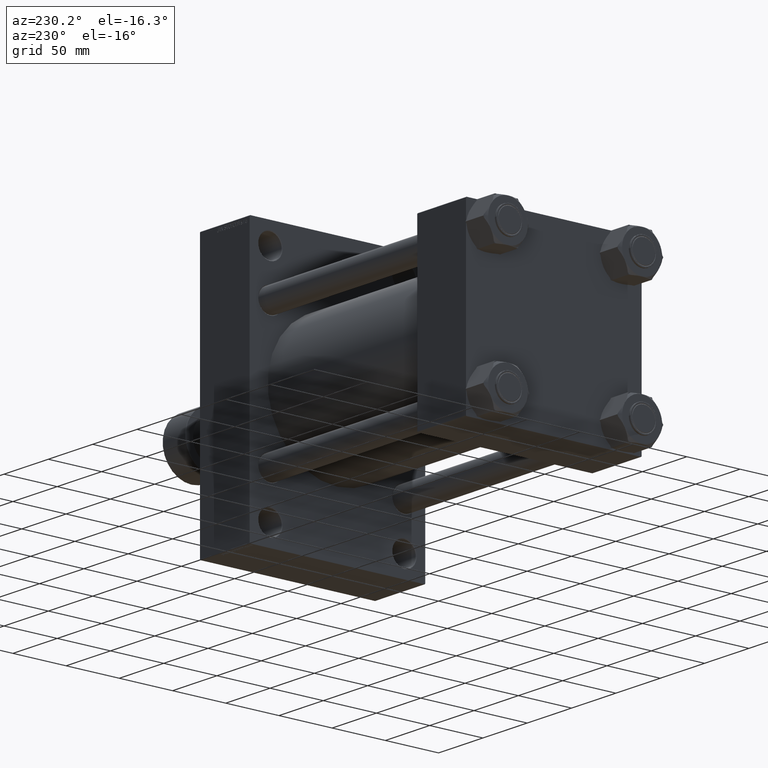
[diagram: clean part render]
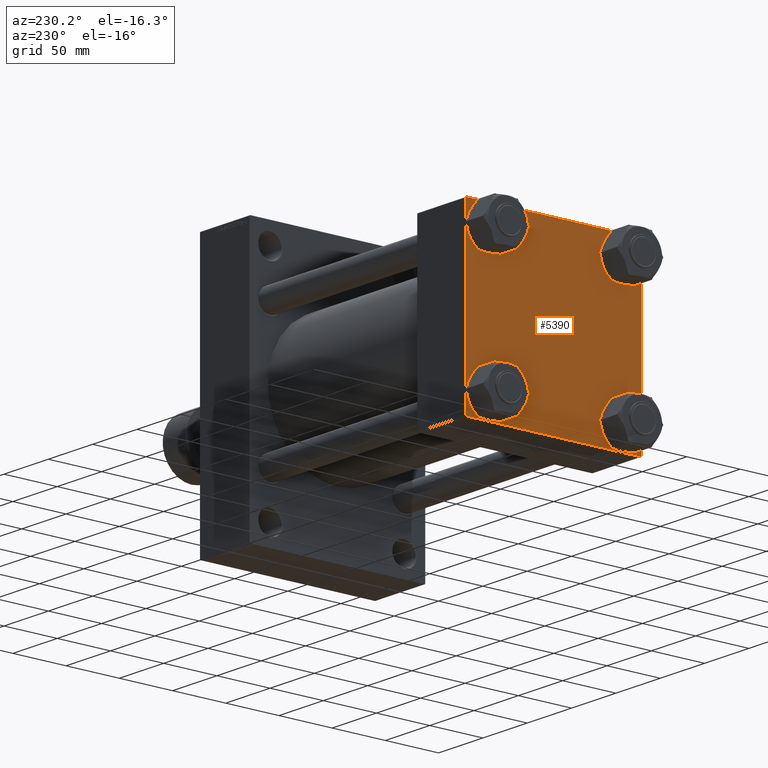
[diagram: same view with one face highlighted and labeled with its STEP entity id]
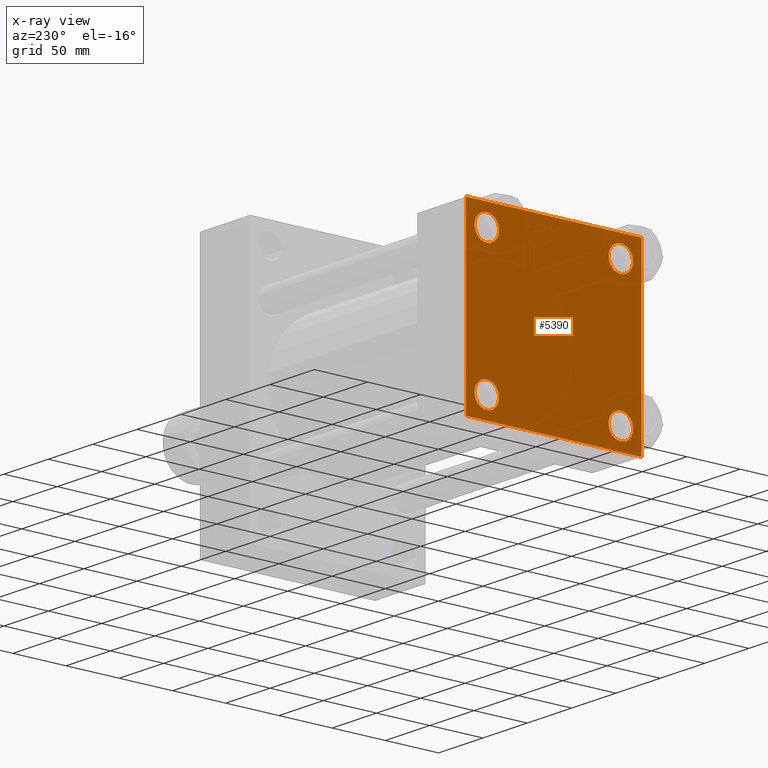
[diagram: x-ray of the same camera — body ghosted, the highlighted face saturated]
A machine part, auxiliary view. The second image highlights one B-rep face of the part: STEP entity #5390.
The next image is the same camera in x-ray: the body ghosted, the highlighted face saturated — about 0% of this face is hidden behind the body in this view.
In plain terms, the highlighted planar face has unit normal (-1, 0, 0).
Its self-contained STEP definition (entity closure, byte-faithful):
#188 = CIRCLE ( 'NONE', #9546, 11.50000000000001066 ) ;
#314 = CARTESIAN_POINT ( 'NONE',  ( 0.000000000000000000, -62.94999999999998153, -62.95000000000001705 ) ) ;
#508 = LINE ( 'NONE', #38087, #28244 ) ;
#569 = DIRECTION ( 'NONE',  ( -0.000000000000000000, 0.7071067811865474617, 0.7071067811865474617 ) ) ;
#718 = FACE_OUTER_BOUND ( 'NONE', #3890, .T. ) ;
#925 = CARTESIAN_POINT ( 'NONE',  ( 0.000000000000000000, 82.00000000000005684, 82.50000000000002842 ) ) ;
#1070 = CARTESIAN_POINT ( 'NONE',  ( 0.000000000000000000, 82.00000000000005684, -82.49999999999997158 ) ) ;
#1481 = EDGE_LOOP ( 'NONE', ( #13738, #5569 ) ) ;
#2561 = LINE ( 'NONE', #36712, #10270 ) ;
#2655 = EDGE_CURVE ( 'NONE', #5943, #29613, #2561, .T. ) ;
#2935 = FACE_BOUND ( 'NONE', #23634, .T. ) ;
#3099 = DIRECTION ( 'NONE',  ( 1.000000000000000000, -0.000000000000000000, -0.000000000000000000 ) ) ;
#3250 = ORIENTED_EDGE ( 'NONE', *, *, #11235, .T. ) ;
#3350 = EDGE_CURVE ( 'NONE', #12153, #4577, #188, .T. ) ;
#3890 = EDGE_LOOP ( 'NONE', ( #15272, #4144, #30940, #3250, #12582, #9297, #38996, #28989 ) ) ;
#3900 = PLANE ( 'NONE',  #13368 ) ;
#3987 = LINE ( 'NONE', #41577, #25564 ) ;
#4063 = EDGE_CURVE ( 'NONE', #48143, #25340, #7997, .T. ) ;
#4133 = VECTOR ( 'NONE', #16854, 1000.000000000000000 ) ;
#4144 = ORIENTED_EDGE ( 'NONE', *, *, #21318, .T. ) ;
#4302 = CIRCLE ( 'NONE', #13637, 11.50000000000001066 ) ;
#4317 = DIRECTION ( 'NONE',  ( 1.000000000000000000, -0.000000000000000000, -0.000000000000000000 ) ) ;
#4577 = VERTEX_POINT ( 'NONE', #21355 ) ;
#5390 = ADVANCED_FACE ( 'NONE', ( #6595, #21480, #36376, #2935, #718 ), #3900, .T. ) ;
#5569 = ORIENTED_EDGE ( 'NONE', *, *, #30186, .T. ) ;
#5749 = EDGE_CURVE ( 'NONE', #27444, #29780, #508, .T. ) ;
#5803 = DIRECTION ( 'NONE',  ( 1.000000000000000000, -0.000000000000000000, -0.000000000000000000 ) ) ;
#5943 = VERTEX_POINT ( 'NONE', #10215 ) ;
#6147 = DIRECTION ( 'NONE',  ( 1.000000000000000000, -0.000000000000000000, -0.000000000000000000 ) ) ;
#6595 = FACE_BOUND ( 'NONE', #28666, .T. ) ;
#6652 = VERTEX_POINT ( 'NONE', #26803 ) ;
#7048 = CARTESIAN_POINT ( 'NONE',  ( 0.000000000000000000, -62.94999999999998153, -51.45000000000000995 ) ) ;
#7058 = CARTESIAN_POINT ( 'NONE',  ( 0.000000000000000000, 82.50000000000002842, 82.50000000000002842 ) ) ;
#7244 = CARTESIAN_POINT ( 'NONE',  ( 0.000000000000000000, 62.95000000000000284, -62.95000000000000284 ) ) ;
#7246 = CARTESIAN_POINT ( 'NONE',  ( 0.000000000000000000, -62.94999999999998153, 74.45000000000003126 ) ) ;
#7561 = CARTESIAN_POINT ( 'NONE',  ( 0.000000000000000000, 0.000000000000000000, 0.000000000000000000 ) ) ;
#7997 = CIRCLE ( 'NONE', #12553, 11.50000000000001066 ) ;
#8092 = EDGE_CURVE ( 'NONE', #8534, #24053, #25886, .T. ) ;
#8314 = CARTESIAN_POINT ( 'NONE',  ( 0.000000000000000000, 62.95000000000000284, 62.95000000000000284 ) ) ;
#8534 = VERTEX_POINT ( 'NONE', #7048 ) ;
#8970 = AXIS2_PLACEMENT_3D ( 'NONE', #30675, #4317, #41667 ) ;
#9297 = ORIENTED_EDGE ( 'NONE', *, *, #24912, .T. ) ;
#9546 = AXIS2_PLACEMENT_3D ( 'NONE', #7244, #3099, #25566 ) ;
#9873 = DIRECTION ( 'NONE',  ( 0.000000000000000000, 0.000000000000000000, 1.000000000000000000 ) ) ;
#10215 = CARTESIAN_POINT ( 'NONE',  ( 0.000000000000000000, 82.50000000000002842, 82.00000000000005684 ) ) ;
#10270 = VECTOR ( 'NONE', #25737, 1000.000000000000000 ) ;
#10291 = EDGE_CURVE ( 'NONE', #10375, #36342, #36356, .T. ) ;
#10375 = VERTEX_POINT ( 'NONE', #925 ) ;
#10395 = CARTESIAN_POINT ( 'NONE',  ( 0.000000000000000000, 82.50000000000002842, -82.00000000000000000 ) ) ;
#10564 = EDGE_CURVE ( 'NONE', #6652, #17267, #24424, .T. ) ;
#11235 = EDGE_CURVE ( 'NONE', #29780, #17267, #20024, .T. ) ;
#11241 = AXIS2_PLACEMENT_3D ( 'NONE', #24994, #25470, #22041 ) ;
#11368 = CARTESIAN_POINT ( 'NONE',  ( 0.000000000000000000, -82.50000000000000000, -81.99999999999998579 ) ) ;
#12153 = VERTEX_POINT ( 'NONE', #25155 ) ;
#12553 = AXIS2_PLACEMENT_3D ( 'NONE', #8314, #41527, #22726 ) ;
#12582 = ORIENTED_EDGE ( 'NONE', *, *, #10564, .F. ) ;
#12762 = DIRECTION ( 'NONE',  ( 0.000000000000000000, 0.7071067811865474617, -0.7071067811865474617 ) ) ;
#13368 = AXIS2_PLACEMENT_3D ( 'NONE', #7561, #23169, #30262 ) ;
#13439 = VERTEX_POINT ( 'NONE', #7246 ) ;
#13637 = AXIS2_PLACEMENT_3D ( 'NONE', #20693, #5803, #17258 ) ;
#13738 = ORIENTED_EDGE ( 'NONE', *, *, #8092, .T. ) ;
#14085 = VERTEX_POINT ( 'NONE', #22018 ) ;
#14969 = EDGE_CURVE ( 'NONE', #10375, #5943, #16431, .T. ) ;
#15202 = DIRECTION ( 'NONE',  ( 1.000000000000000000, -0.000000000000000000, -0.000000000000000000 ) ) ;
#15272 = ORIENTED_EDGE ( 'NONE', *, *, #2655, .T. ) ;
#16230 = DIRECTION ( 'NONE',  ( 1.000000000000000000, -0.000000000000000000, -0.000000000000000000 ) ) ;
#16431 = LINE ( 'NONE', #31333, #34542 ) ;
#16470 = CARTESIAN_POINT ( 'NONE',  ( 0.000000000000000000, 62.95000000000000284, -62.95000000000000284 ) ) ;
#16823 = VECTOR ( 'NONE', #18388, 1000.000000000000114 ) ;
#16854 = DIRECTION ( 'NONE',  ( 0.000000000000000000, -1.682156097916903588E-16, -1.000000000000000000 ) ) ;
#17134 = CARTESIAN_POINT ( 'NONE',  ( 0.000000000000000000, -62.94999999999998153, -62.95000000000001705 ) ) ;
#17258 = DIRECTION ( 'NONE',  ( 0.000000000000000000, 0.000000000000000000, 1.000000000000000000 ) ) ;
#17267 = VERTEX_POINT ( 'NONE', #11368 ) ;
#17981 = ORIENTED_EDGE ( 'NONE', *, *, #4063, .T. ) ;
#18030 = DIRECTION ( 'NONE',  ( 0.000000000000000000, -1.000000000000000000, -8.410780489584519171E-17 ) ) ;
#18388 = DIRECTION ( 'NONE',  ( -0.000000000000000000, -0.7071067811865474617, -0.7071067811865474617 ) ) ;
#19160 = EDGE_CURVE ( 'NONE', #13439, #14085, #30037, .T. ) ;
#19289 = DIRECTION ( 'NONE',  ( 0.000000000000000000, -1.000000000000000000, -1.682156097916903588E-16 ) ) ;
#20024 = LINE ( 'NONE', #41529, #43154 ) ;
#20693 = CARTESIAN_POINT ( 'NONE',  ( 0.000000000000000000, -62.94999999999998153, 62.95000000000001705 ) ) ;
#20760 = CARTESIAN_POINT ( 'NONE',  ( 0.000000000000000000, -82.49999999999997158, 82.50000000000001421 ) ) ;
#21034 = DIRECTION ( 'NONE',  ( 0.000000000000000000, 0.000000000000000000, 1.000000000000000000 ) ) ;
#21197 = AXIS2_PLACEMENT_3D ( 'NONE', #314, #15202, #33522 ) ;
#21277 = CARTESIAN_POINT ( 'NONE',  ( 0.000000000000000000, 62.95000000000000284, 51.44999999999999574 ) ) ;
#21318 = EDGE_CURVE ( 'NONE', #29613, #27444, #36693, .T. ) ;
#21355 = CARTESIAN_POINT ( 'NONE',  ( 0.000000000000000000, 62.95000000000000284, -51.44999999999999574 ) ) ;
#21480 = FACE_BOUND ( 'NONE', #1481, .T. ) ;
#22018 = CARTESIAN_POINT ( 'NONE',  ( 0.000000000000000000, -62.94999999999998153, 51.45000000000000995 ) ) ;
#22041 = DIRECTION ( 'NONE',  ( 0.000000000000000000, 0.000000000000000000, 1.000000000000000000 ) ) ;
#22726 = DIRECTION ( 'NONE',  ( 0.000000000000000000, 0.000000000000000000, 1.000000000000000000 ) ) ;
#23169 = DIRECTION ( 'NONE',  ( -1.000000000000000000, 0.000000000000000000, 0.000000000000000000 ) ) ;
#23634 = EDGE_LOOP ( 'NONE', ( #17981, #45297 ) ) ;
#24053 = VERTEX_POINT ( 'NONE', #37708 ) ;
#24424 = LINE ( 'NONE', #20760, #4133 ) ;
#24912 = EDGE_CURVE ( 'NONE', #6652, #36342, #3987, .T. ) ;
#24994 = CARTESIAN_POINT ( 'NONE',  ( 0.000000000000000000, 62.95000000000000284, 62.95000000000000284 ) ) ;
#25155 = CARTESIAN_POINT ( 'NONE',  ( 0.000000000000000000, 62.95000000000000284, -74.45000000000001705 ) ) ;
#25340 = VERTEX_POINT ( 'NONE', #21277 ) ;
#25470 = DIRECTION ( 'NONE',  ( 1.000000000000000000, -0.000000000000000000, -0.000000000000000000 ) ) ;
#25564 = VECTOR ( 'NONE', #569, 1000.000000000000114 ) ;
#25566 = DIRECTION ( 'NONE',  ( 0.000000000000000000, 0.000000000000000000, 1.000000000000000000 ) ) ;
#25737 = DIRECTION ( 'NONE',  ( 0.000000000000000000, 0.000000000000000000, -1.000000000000000000 ) ) ;
#25886 = CIRCLE ( 'NONE', #21197, 11.50000000000001066 ) ;
#26803 = CARTESIAN_POINT ( 'NONE',  ( 0.000000000000000000, -82.49999999999997158, 82.00000000000001421 ) ) ;
#27121 = ORIENTED_EDGE ( 'NONE', *, *, #19160, .T. ) ;
#27444 = VERTEX_POINT ( 'NONE', #1070 ) ;
#27611 = DIRECTION ( 'NONE',  ( 0.000000000000000000, -0.7071067811865376918, 0.7071067811865574537 ) ) ;
#28244 = VECTOR ( 'NONE', #19289, 1000.000000000000000 ) ;
#28666 = EDGE_LOOP ( 'NONE', ( #27121, #39812 ) ) ;
#28989 = ORIENTED_EDGE ( 'NONE', *, *, #14969, .T. ) ;
#29302 = EDGE_LOOP ( 'NONE', ( #31915, #40516 ) ) ;
#29613 = VERTEX_POINT ( 'NONE', #10395 ) ;
#29780 = VERTEX_POINT ( 'NONE', #45797 ) ;
#30037 = CIRCLE ( 'NONE', #8970, 11.50000000000001066 ) ;
#30186 = EDGE_CURVE ( 'NONE', #24053, #8534, #44317, .T. ) ;
#30262 = DIRECTION ( 'NONE',  ( 0.000000000000000000, 0.000000000000000000, 1.000000000000000000 ) ) ;
#30675 = CARTESIAN_POINT ( 'NONE',  ( 0.000000000000000000, -62.94999999999998153, 62.95000000000001705 ) ) ;
#30810 = CARTESIAN_POINT ( 'NONE',  ( 0.000000000000000000, -81.99999999999997158, 82.50000000000001421 ) ) ;
#30940 = ORIENTED_EDGE ( 'NONE', *, *, #5749, .T. ) ;
#31333 = CARTESIAN_POINT ( 'NONE',  ( 0.000000000000000000, 82.25000000000002842, 82.25000000000002842 ) ) ;
#31360 = CIRCLE ( 'NONE', #44620, 11.50000000000001066 ) ;
#31915 = ORIENTED_EDGE ( 'NONE', *, *, #34763, .T. ) ;
#33260 = CARTESIAN_POINT ( 'NONE',  ( 0.000000000000000000, 62.95000000000000284, 74.45000000000001705 ) ) ;
#33522 = DIRECTION ( 'NONE',  ( 0.000000000000000000, 0.000000000000000000, 1.000000000000000000 ) ) ;
#34542 = VECTOR ( 'NONE', #12762, 1000.000000000000114 ) ;
#34763 = EDGE_CURVE ( 'NONE', #4577, #12153, #31360, .T. ) ;
#36342 = VERTEX_POINT ( 'NONE', #30810 ) ;
#36356 = LINE ( 'NONE', #7058, #42336 ) ;
#36376 = FACE_BOUND ( 'NONE', #29302, .T. ) ;
#36693 = LINE ( 'NONE', #47965, #16823 ) ;
#36712 = CARTESIAN_POINT ( 'NONE',  ( 0.000000000000000000, 82.50000000000002842, 82.50000000000002842 ) ) ;
#37708 = CARTESIAN_POINT ( 'NONE',  ( 0.000000000000000000, -62.94999999999998153, -74.45000000000003126 ) ) ;
#38087 = CARTESIAN_POINT ( 'NONE',  ( 0.000000000000000000, 82.50000000000002842, -82.49999999999997158 ) ) ;
#38996 = ORIENTED_EDGE ( 'NONE', *, *, #10291, .F. ) ;
#39302 = CIRCLE ( 'NONE', #11241, 11.50000000000001066 ) ;
#39812 = ORIENTED_EDGE ( 'NONE', *, *, #46095, .T. ) ;
#40516 = ORIENTED_EDGE ( 'NONE', *, *, #3350, .T. ) ;
#41527 = DIRECTION ( 'NONE',  ( 1.000000000000000000, -0.000000000000000000, -0.000000000000000000 ) ) ;
#41529 = CARTESIAN_POINT ( 'NONE',  ( 0.000000000000000000, -82.25000000000115108, -82.24999999999886313 ) ) ;
#41577 = CARTESIAN_POINT ( 'NONE',  ( 0.000000000000000000, -82.25000000000000000, 82.25000000000000000 ) ) ;
#41667 = DIRECTION ( 'NONE',  ( 0.000000000000000000, 0.000000000000000000, 1.000000000000000000 ) ) ;
#42336 = VECTOR ( 'NONE', #18030, 1000.000000000000000 ) ;
#42784 = AXIS2_PLACEMENT_3D ( 'NONE', #17134, #6147, #21034 ) ;
#43154 = VECTOR ( 'NONE', #27611, 999.9999999999998863 ) ;
#44317 = CIRCLE ( 'NONE', #42784, 11.50000000000001066 ) ;
#44364 = EDGE_CURVE ( 'NONE', #25340, #48143, #39302, .T. ) ;
#44620 = AXIS2_PLACEMENT_3D ( 'NONE', #16470, #16230, #9873 ) ;
#45297 = ORIENTED_EDGE ( 'NONE', *, *, #44364, .T. ) ;
#45797 = CARTESIAN_POINT ( 'NONE',  ( 0.000000000000000000, -82.00000000000000000, -82.50000000000000000 ) ) ;
#46095 = EDGE_CURVE ( 'NONE', #14085, #13439, #4302, .T. ) ;
#47965 = CARTESIAN_POINT ( 'NONE',  ( 0.000000000000000000, 82.25000000000001421, -82.25000000000001421 ) ) ;
#48143 = VERTEX_POINT ( 'NONE', #33260 ) ;